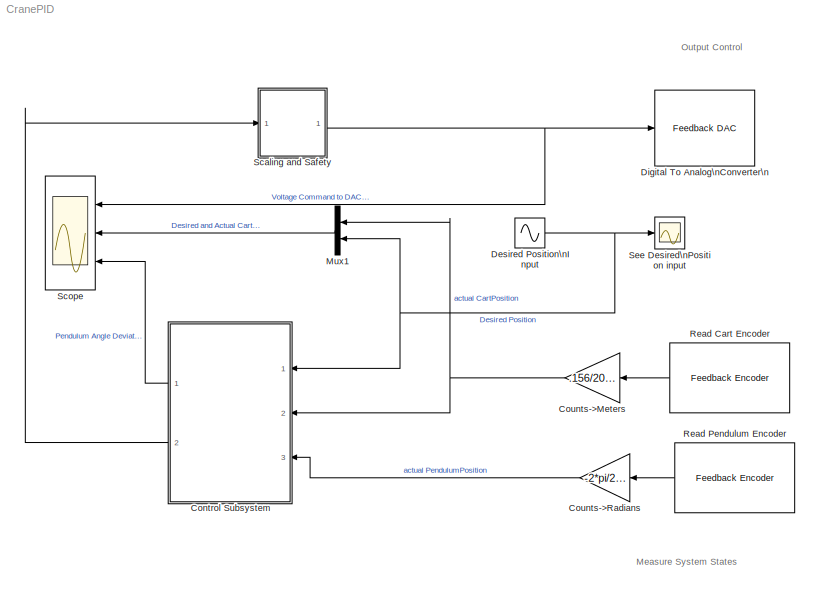
MODEL CranePID
KIND model
CONFIG AbsTol = auto
CONFIG FixedStep = 0.001
CONFIG MaxStep = auto
CONFIG MinStep = auto
CONFIG RelTol = 1e-3
CONFIG Solver = ode5
CONFIG SolverMode = SingleTasking
CONFIG StartTime = 0.0
CONFIG StopTime = 50.0
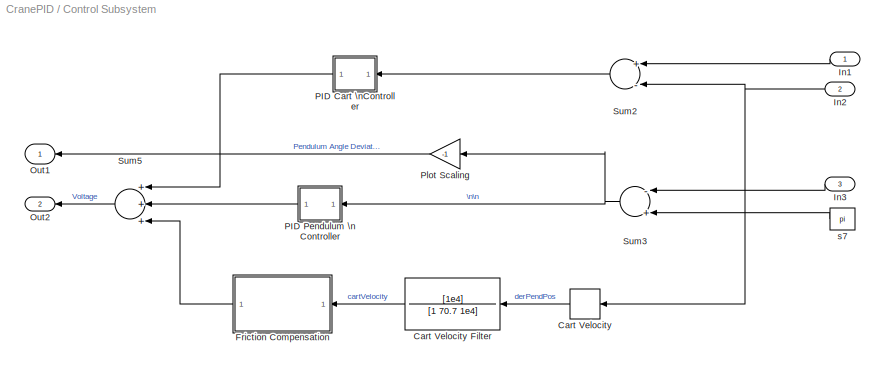
BLOCK [SubSystem] Control Subsystem
  Ports = [3, 2]
  TreatAsAtomicUnit = off
BLOCK [Derivative] Control Subsystem/Cart Velocity
BLOCK [TransferFcn] Control Subsystem/Cart Velocity  Filter
  Denominator = [1 70.7 1e4]
  Numerator = [1e4]
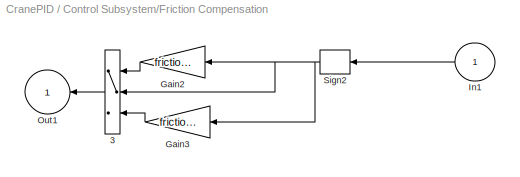
BLOCK [SubSystem] Control Subsystem/Friction Compensation
  MaskCallbackString = |
  MaskDisplay = plot(0,0,100,100,[40,30,20],[87,85,80],[46,54,54,46,46],[90,90,80,80,90],[46,45,45,46,54,55,55,54,46],[78,80,90,91,91,90,80,78,78],[51,51,49,49],[78,10,10,78],[90,80,70,60],[70,80,85,88],[20,10],[80,70],[20,20,15],[73,80,80],[85,80,80],[80,80,74])
  MaskEnableString = on,on
  MaskIconFrame = on
  MaskIconOpaque = on
  MaskIconRotate = none
  MaskIconUnits = autoscale
  MaskPromptString = Friction Compensation Magnitude in Negative Direction|Friction Compensation Magnitude in Positive Direction
  MaskStyleString = edit,edit
  MaskToolTipString = on,on
  MaskTunableValueString = on,on
  MaskType = linear
  MaskValueString = .1|.1
  MaskVarAliasString = ,
  MaskVariables = frictionCompNeg=@1;frictionCompPos=@2;
  MaskVisibilityString = on,on
  Ports = [1, 1]
  TreatAsAtomicUnit = off
BLOCK [Switch] Control Subsystem/Friction Compensation/3
BLOCK [Gain] Control Subsystem/Friction Compensation/Gain2
  Gain = frictionCompPos
BLOCK [Gain] Control Subsystem/Friction Compensation/Gain3
  Gain = frictionCompNeg
BLOCK [Inport] Control Subsystem/Friction Compensation/In1
BLOCK [Outport] Control Subsystem/Friction Compensation/Out1
  InitialOutput = 0
BLOCK [Signum] Control Subsystem/Friction Compensation/Sign2
  Tag = T
BLOCK [Inport] Control Subsystem/In1
BLOCK [Inport] Control Subsystem/In2
  Port = 2
BLOCK [Inport] Control Subsystem/In3
  Port = 3
BLOCK [Outport] Control Subsystem/Out1
BLOCK [Outport] Control Subsystem/Out2
  Port = 2
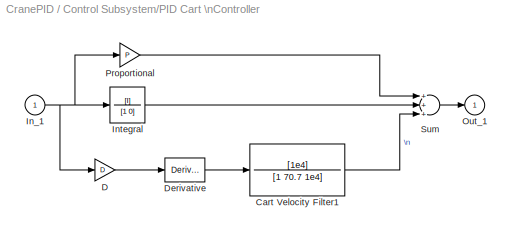
BLOCK [SubSystem] Control Subsystem/PID Cart \nController
  MaskCallbackString = ||
  MaskDescription = Enter expressions for proportional, integral, and derivative terms.\nP+I/s+Ds
  MaskDisplay = disp('PID')
  MaskEnableString = on,on,on
  MaskHelp = This block implements a PID controller where parameters are entered for the Proportional, Integral and Derivative terms. Unmask this block to see how it works. The derivative term is implemented using a true derivative block.
  MaskIconFrame = on
  MaskIconOpaque = on
  MaskIconRotate = none
  MaskIconUnits = autoscale
  MaskInitialization = P=@1; I=@2; D=@3;
  MaskPromptString = Proportional:|Integral|Derivative:
  MaskStyleString = edit,edit,edit
  MaskToolTipString = on,on,on
  MaskTunableValueString = on,on,on
  MaskType = PID Controller
  MaskValueString = 10|1|2
  MaskVarAliasString = ,,
  MaskVisibilityString = on,on,on
  Ports = [1, 1]
  ShowPortLabels = off
  TreatAsAtomicUnit = off
BLOCK [TransferFcn] Control Subsystem/PID Cart \nController/Cart Velocity  Filter1
  Denominator = [1 70.7 1e4]
  Numerator = [1e4]
BLOCK [Gain] Control Subsystem/PID Cart \nController/D
  Gain = D
BLOCK [Derivative] Control Subsystem/PID Cart \nController/Derivative
BLOCK [Inport] Control Subsystem/PID Cart \nController/In_1
BLOCK [TransferFcn] Control Subsystem/PID Cart \nController/Integral
  Denominator = [1 0]
  Numerator = [I]
BLOCK [Outport] Control Subsystem/PID Cart \nController/Out_1
  InitialOutput = 0
BLOCK [Gain] Control Subsystem/PID Cart \nController/Proportional
  Gain = P
BLOCK [Sum] Control Subsystem/PID Cart \nController/Sum
  Inputs = +++
  Ports = [3, 1]
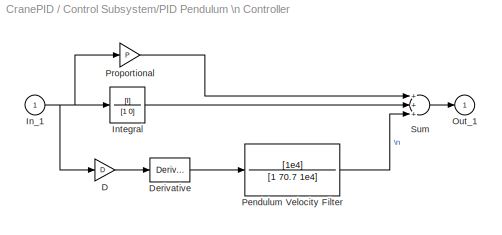
BLOCK [SubSystem] Control Subsystem/PID Pendulum \n Controller
  MaskCallbackString = ||
  MaskDescription = Enter expressions for proportional, integral, and derivative terms.\nP+I/s+Ds
  MaskDisplay = disp('PID')
  MaskEnableString = on,on,on
  MaskHelp = This block implements a PID controller where parameters are entered for the Proportional, Integral and Derivative terms. Unmask this block to see how it works. The derivative term is implemented using a true derivative block.
  MaskIconFrame = on
  MaskIconOpaque = on
  MaskIconRotate = none
  MaskIconUnits = autoscale
  MaskInitialization = P=@1; I=@2; D=@3;
  MaskPromptString = Proportional:|Integral|Derivative:
  MaskStyleString = edit,edit,edit
  MaskToolTipString = on,on,on
  MaskTunableValueString = on,on,on
  MaskType = PID Controller
  MaskValueString = -5|0|0
  MaskVarAliasString = ,,
  MaskVisibilityString = on,on,on
  Ports = [1, 1]
  ShowPortLabels = off
  TreatAsAtomicUnit = off
BLOCK [Gain] Control Subsystem/PID Pendulum \n Controller/D
  Gain = D
BLOCK [Derivative] Control Subsystem/PID Pendulum \n Controller/Derivative
BLOCK [Inport] Control Subsystem/PID Pendulum \n Controller/In_1
BLOCK [TransferFcn] Control Subsystem/PID Pendulum \n Controller/Integral
  Denominator = [1 0]
  Numerator = [I]
BLOCK [Outport] Control Subsystem/PID Pendulum \n Controller/Out_1
  InitialOutput = 0
BLOCK [TransferFcn] Control Subsystem/PID Pendulum \n Controller/Pendulum Velocity  Filter
  Denominator = [1 70.7 1e4]
  Numerator = [1e4]
BLOCK [Gain] Control Subsystem/PID Pendulum \n Controller/Proportional
  Gain = P
BLOCK [Sum] Control Subsystem/PID Pendulum \n Controller/Sum
  Inputs = +++
  Ports = [3, 1]
BLOCK [Gain] Control Subsystem/Plot Scaling
  Gain = -1
BLOCK [Sum] Control Subsystem/Sum2
  Inputs = +-
  Ports = [2, 1]
BLOCK [Sum] Control Subsystem/Sum3
  Inputs = -+
  Ports = [2, 1]
BLOCK [Sum] Control Subsystem/Sum5
  Inputs = +++
  Ports = [3, 1]
BLOCK [Constant] Control Subsystem/s7
  Value = pi
BLOCK [Gain] Counts->Meters
  Gain = .156/2048
BLOCK [Gain] Counts->Radians
  Gain = -2*pi/2048
BLOCK [Sin] Desired Position\nInput
  Amplitude = 0.2
  Frequency = 5
  SampleTime = 0
  SineType = Time based
BLOCK [Reference] Digital To Analog\nConverter\n  REF=pci1711/Advantech \nPCI1711 I//O Board Lib/Feedback DAC
  Ports = [1]
  SourceBlock = pci1711/Advantech \nPCI1711 I//O Board Lib/Feedback DAC
  SourceType = DAC Unit for Feedback Experiments
  channel = 0
  hwAccess = on
  range = 0
  tsamp = 0.001
BLOCK [Mux] Mux1
  Inputs = 2
  Ports = [2, 1]
BLOCK [Reference] Read Cart Encoder  REF=pci1711/Advantech \nPCI1711 I//O Board Lib/Feedback Encoder 
  Ports = [0, 1]
  SourceBlock = pci1711/Advantech \nPCI1711 I//O Board Lib/Feedback Encoder
  SourceType = Feedback Encoder Block
  channel = 0
  hwAccess = on
  offset = 0
  tsamp = 0.001
BLOCK [Reference] Read Pendulum Encoder  REF=pci1711/Advantech \nPCI1711 I//O Board Lib/Feedback Encoder 
  Ports = [0, 1]
  SourceBlock = pci1711/Advantech \nPCI1711 I//O Board Lib/Feedback Encoder
  SourceType = Feedback Encoder Block
  channel = 1
  hwAccess = on
  offset = -1024
  tsamp = 0.001
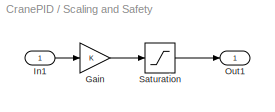
BLOCK [SubSystem] Scaling and Safety
  Ports = [1, 1]
  TreatAsAtomicUnit = off
BLOCK [Gain] Scaling and Safety/Gain
BLOCK [Inport] Scaling and Safety/In1
BLOCK [Outport] Scaling and Safety/Out1
BLOCK [Saturate] Scaling and Safety/Saturation
  LowerLimit = -2.5
  UpperLimit = 2.5
BLOCK [Scope] Scope
  DataFormat = StructureWithTime
  Decimation = 10
  ExtModeUploadOption = log
  LimitDataPoints = off
  NumInputPorts = 3
  Ports = [3]
  SampleInput = on
  SampleTime = 0.01
  SaveToWorkspace = on
  TickLabels = on
  TimeRange = 50
  YMax = 2.5~0.2~1
  YMin = -2.5~-0.2~-1
BLOCK [Scope] See Desired\nPosition input
  DataFormat = StructureWithTime
  NumInputPorts = 1
  Ports = [1]
  SampleInput = on
  SampleTime = 0.1
  YMax = 1.5
  YMin = -0.75
ANNOTATION (root): Measure System States
ANNOTATION (root): Output Control
ANNOTATION (root): \n
LINE Control Subsystem/Cart Velocity  Filter:1 -> Control Subsystem/Friction Compensation:1
LINE Control Subsystem/Cart Velocity:1 -> Control Subsystem/Cart Velocity  Filter:1
LINE Control Subsystem/Friction Compensation/3:1 -> Control Subsystem/Friction Compensation/Out1:1
LINE Control Subsystem/Friction Compensation/Gain2:1 -> Control Subsystem/Friction Compensation/3:1
LINE Control Subsystem/Friction Compensation/Gain3:1 -> Control Subsystem/Friction Compensation/3:3
LINE Control Subsystem/Friction Compensation/In1:1 -> Control Subsystem/Friction Compensation/Sign2:1
NET Control Subsystem/Friction Compensation/Sign2:1 -> Control Subsystem/Friction Compensation/3:2, Control Subsystem/Friction Compensation/Gain2:1, Control Subsystem/Friction Compensation/Gain3:1
LINE Control Subsystem/Friction Compensation:1 -> Control Subsystem/Sum5:3
LINE Control Subsystem/In1:1 -> Control Subsystem/Sum2:1
NET Control Subsystem/In2:1 -> Control Subsystem/Cart Velocity:1, Control Subsystem/Sum2:2
LINE Control Subsystem/In3:1 -> Control Subsystem/Sum3:1
LINE Control Subsystem/PID Cart \nController/Cart Velocity  Filter1:1 -> Control Subsystem/PID Cart \nController/Sum:3
LINE Control Subsystem/PID Cart \nController/D:1 -> Control Subsystem/PID Cart \nController/Derivative:1
LINE Control Subsystem/PID Cart \nController/Derivative:1 -> Control Subsystem/PID Cart \nController/Cart Velocity  Filter1:1
NET Control Subsystem/PID Cart \nController/In_1:1 -> Control Subsystem/PID Cart \nController/D:1, Control Subsystem/PID Cart \nController/Integral:1, Control Subsystem/PID Cart \nController/Proportional:1
LINE Control Subsystem/PID Cart \nController/Integral:1 -> Control Subsystem/PID Cart \nController/Sum:2
LINE Control Subsystem/PID Cart \nController/Proportional:1 -> Control Subsystem/PID Cart \nController/Sum:1
LINE Control Subsystem/PID Cart \nController/Sum:1 -> Control Subsystem/PID Cart \nController/Out_1:1
LINE Control Subsystem/PID Cart \nController:1 -> Control Subsystem/Sum5:1
LINE Control Subsystem/PID Pendulum \n Controller/D:1 -> Control Subsystem/PID Pendulum \n Controller/Derivative:1
LINE Control Subsystem/PID Pendulum \n Controller/Derivative:1 -> Control Subsystem/PID Pendulum \n Controller/Pendulum Velocity  Filter:1
NET Control Subsystem/PID Pendulum \n Controller/In_1:1 -> Control Subsystem/PID Pendulum \n Controller/D:1, Control Subsystem/PID Pendulum \n Controller/Integral:1, Control Subsystem/PID Pendulum \n Controller/Proportional:1
LINE Control Subsystem/PID Pendulum \n Controller/Integral:1 -> Control Subsystem/PID Pendulum \n Controller/Sum:2
LINE Control Subsystem/PID Pendulum \n Controller/Pendulum Velocity  Filter:1 -> Control Subsystem/PID Pendulum \n Controller/Sum:3
LINE Control Subsystem/PID Pendulum \n Controller/Proportional:1 -> Control Subsystem/PID Pendulum \n Controller/Sum:1
LINE Control Subsystem/PID Pendulum \n Controller/Sum:1 -> Control Subsystem/PID Pendulum \n Controller/Out_1:1
LINE Control Subsystem/PID Pendulum \n Controller:1 -> Control Subsystem/Sum5:2
LINE Control Subsystem/Plot Scaling:1 -> Control Subsystem/Out1:1
LINE Control Subsystem/Sum2:1 -> Control Subsystem/PID Cart \nController:1
NET Control Subsystem/Sum3:1 -> Control Subsystem/PID Pendulum \n Controller:1, Control Subsystem/Plot Scaling:1
LINE Control Subsystem/Sum5:1 -> Control Subsystem/Out2:1
LINE Control Subsystem/s7:1 -> Control Subsystem/Sum3:2
LINE Control Subsystem:1 -> Scope:3
LINE Control Subsystem:2 -> Scaling and Safety:1
NET Counts->Meters:1 -> Control Subsystem:2, Mux1:1
LINE Counts->Radians:1 -> Control Subsystem:3
NET Desired Position\nInput:1 -> Control Subsystem:1, Mux1:2, See Desired\nPosition input:1
LINE Mux1:1 -> Scope:2
LINE Read Cart Encoder:1 -> Counts->Meters:1
LINE Read Pendulum Encoder:1 -> Counts->Radians:1
LINE Scaling and Safety/Gain:1 -> Scaling and Safety/Saturation:1
LINE Scaling and Safety/In1:1 -> Scaling and Safety/Gain:1
LINE Scaling and Safety/Saturation:1 -> Scaling and Safety/Out1:1
NET Scaling and Safety:1 -> Digital To Analog\nConverter\n:1, Scope:1
note: NET lines group one-source signal fan-out (src -> all destinations, sorted); 1:1 wires keep LINE
